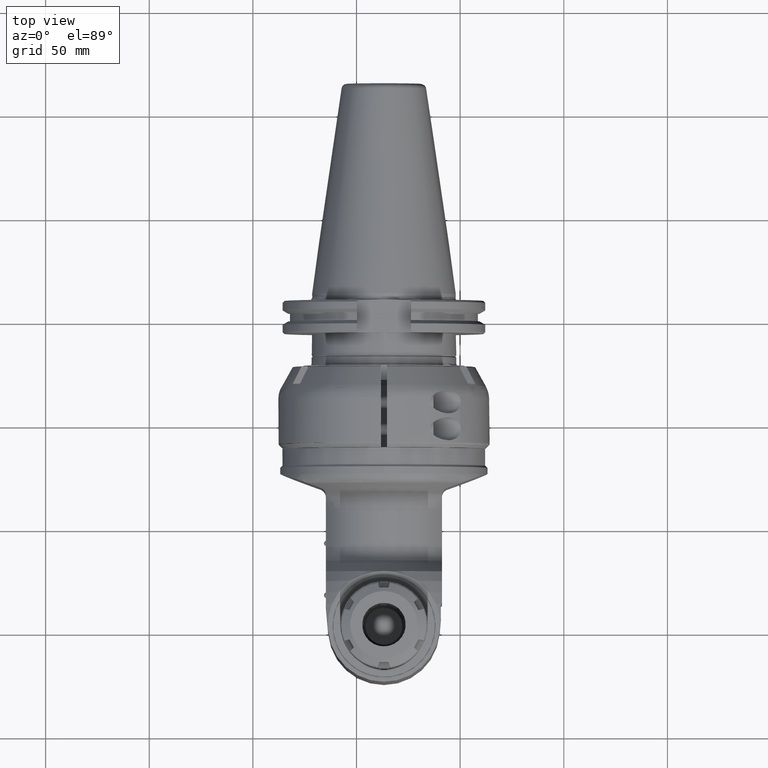
[diagram: clean part render]
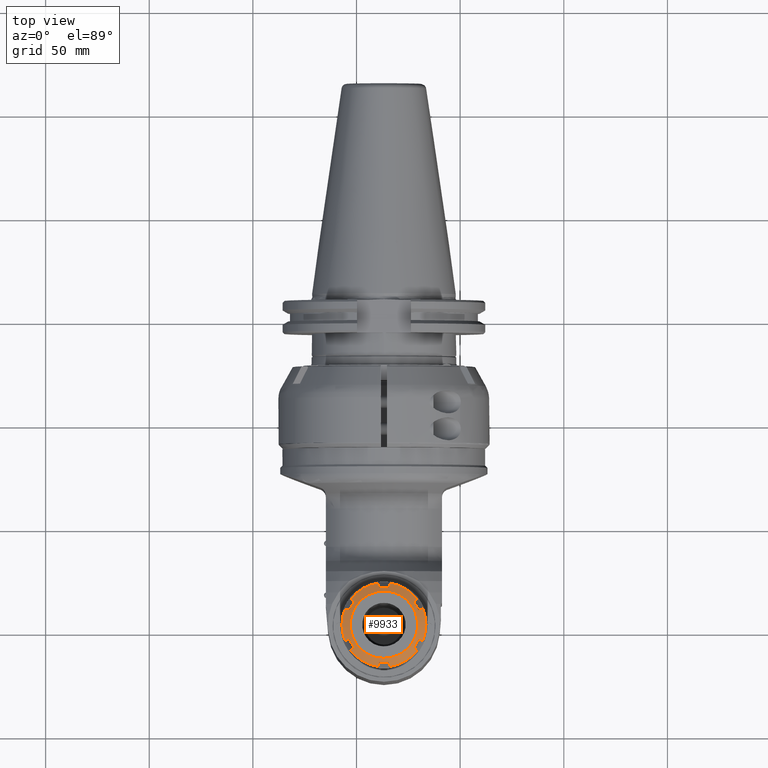
[diagram: same view with one face highlighted and labeled with its STEP entity id]
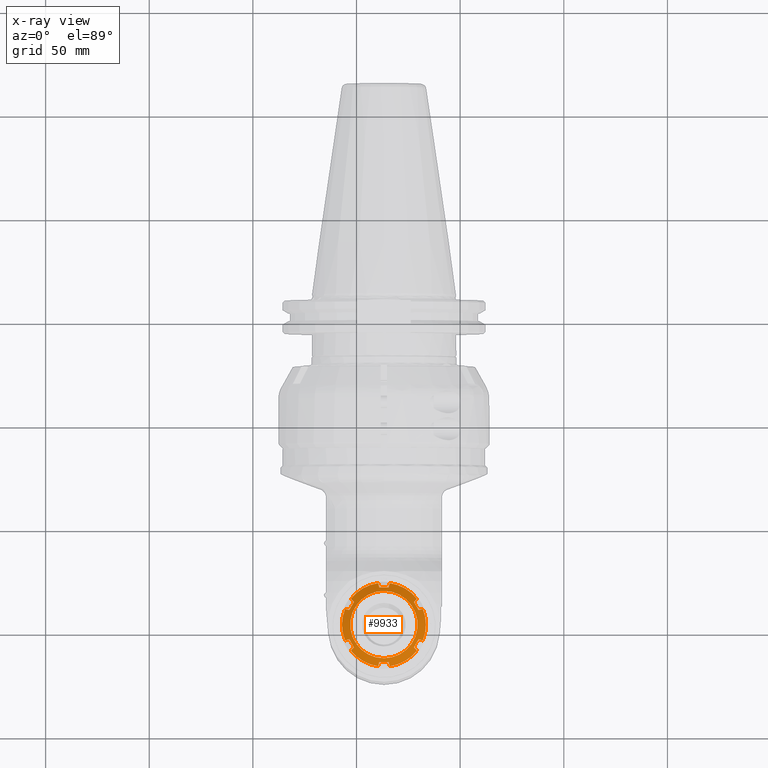
[diagram: x-ray of the same camera — body ghosted, the highlighted face saturated]
A machine part, top view. The second image highlights one B-rep face of the part: STEP entity #9933.
The next image is the same camera in x-ray: the body ghosted, the highlighted face saturated — about 0% of this face is hidden behind the body in this view.
In plain terms, the highlighted conical surface has half-angle 60 deg.
Its self-contained STEP definition (entity closure, byte-faithful):
#118=CONICAL_SURFACE('',#10734,18.25,1.0471975511966);
#382=(
BOUNDED_CURVE()
B_SPLINE_CURVE(2,(#15946,#15947,#15948),.UNSPECIFIED.,.F.,.F.)
B_SPLINE_CURVE_WITH_KNOTS((3,3),(-2.04181772173244,-1.49336521484268),
 .UNSPECIFIED.)
CURVE()
GEOMETRIC_REPRESENTATION_ITEM()
RATIONAL_B_SPLINE_CURVE((1.18733146057967,1.1965715415215,1.18733146058405))
REPRESENTATION_ITEM('')
);
#383=(
BOUNDED_CURVE()
B_SPLINE_CURVE(2,(#15951,#15952,#15953),.UNSPECIFIED.,.F.,.F.)
B_SPLINE_CURVE_WITH_KNOTS((3,3),(-1.02537702849862,-0.679972099676546),
 .UNSPECIFIED.)
CURVE()
GEOMETRIC_REPRESENTATION_ITEM()
RATIONAL_B_SPLINE_CURVE((1.06818275839076,1.06144565769318,1.05151057442012))
REPRESENTATION_ITEM('')
);
#384=(
BOUNDED_CURVE()
B_SPLINE_CURVE(2,(#15975,#15976,#15977),.UNSPECIFIED.,.F.,.F.)
B_SPLINE_CURVE_WITH_KNOTS((3,3),(0.680085396768805,1.02555299439667),
 .UNSPECIFIED.)
CURVE()
GEOMETRIC_REPRESENTATION_ITEM()
RATIONAL_B_SPLINE_CURVE((1.05152845437069,1.0614683149094,1.068210188341))
REPRESENTATION_ITEM('')
);
#385=(
BOUNDED_CURVE()
B_SPLINE_CURVE(2,(#15988,#15989,#15990),.UNSPECIFIED.,.F.,.F.)
B_SPLINE_CURVE_WITH_KNOTS((3,3),(-2.04181760293169,-1.49336533351316),
 .UNSPECIFIED.)
CURVE()
GEOMETRIC_REPRESENTATION_ITEM()
RATIONAL_B_SPLINE_CURVE((1.18733146458299,1.19657153752098,1.18733146458292))
REPRESENTATION_ITEM('')
);
#386=(
BOUNDED_CURVE()
B_SPLINE_CURVE(2,(#15993,#15994,#15995),.UNSPECIFIED.,.F.,.F.)
B_SPLINE_CURVE_WITH_KNOTS((3,3),(2.48068688836934,2.82609226925128),
 .UNSPECIFIED.)
CURVE()
GEOMETRIC_REPRESENTATION_ITEM()
RATIONAL_B_SPLINE_CURVE((1.06818275839783,1.06144564888226,1.05151054841995))
REPRESENTATION_ITEM('')
);
#387=(
BOUNDED_CURVE()
B_SPLINE_CURVE(2,(#16019,#16020,#16021),.UNSPECIFIED.,.F.,.F.)
B_SPLINE_CURVE_WITH_KNOTS((3,3),(-2.82609226927151,-2.48068688839096),
 .UNSPECIFIED.)
CURVE()
GEOMETRIC_REPRESENTATION_ITEM()
RATIONAL_B_SPLINE_CURVE((1.05151054841976,1.06144564888202,1.0681827583976))
REPRESENTATION_ITEM('')
);
#388=(
BOUNDED_CURVE()
B_SPLINE_CURVE(2,(#16030,#16031,#16032),.UNSPECIFIED.,.F.,.F.)
B_SPLINE_CURVE_WITH_KNOTS((3,3),(-2.04181760293166,-1.49336533351213),
 .UNSPECIFIED.)
CURVE()
GEOMETRIC_REPRESENTATION_ITEM()
RATIONAL_B_SPLINE_CURVE((1.18733146458258,1.19657153752061,1.18733146458255))
REPRESENTATION_ITEM('')
);
#389=(
BOUNDED_CURVE()
B_SPLINE_CURVE(2,(#16035,#16036,#16037),.UNSPECIFIED.,.F.,.F.)
B_SPLINE_CURVE_WITH_KNOTS((3,3),(2.48068688837079,2.82609226925146),
 .UNSPECIFIED.)
CURVE()
GEOMETRIC_REPRESENTATION_ITEM()
RATIONAL_B_SPLINE_CURVE((1.06818275839811,1.06144564888253,1.05151054842024))
REPRESENTATION_ITEM('')
);
#390=(
BOUNDED_CURVE()
B_SPLINE_CURVE(2,(#16059,#16060,#16061),.UNSPECIFIED.,.F.,.F.)
B_SPLINE_CURVE_WITH_KNOTS((3,3),(0.680085849541095,1.02555299438939),
 .UNSPECIFIED.)
CURVE()
GEOMETRIC_REPRESENTATION_ITEM()
RATIONAL_B_SPLINE_CURVE((1.05152848042184,1.06146832374113,1.06821018833628))
REPRESENTATION_ITEM('')
);
#391=(
BOUNDED_CURVE()
B_SPLINE_CURVE(2,(#16073,#16074,#16075),.UNSPECIFIED.,.F.,.F.)
B_SPLINE_CURVE_WITH_KNOTS((3,3),(-2.04181772176978,-1.76759146822259),
 .UNSPECIFIED.)
CURVE()
GEOMETRIC_REPRESENTATION_ITEM()
RATIONAL_B_SPLINE_CURVE((1.18733146057841,1.19195150105168,1.19195150105168))
REPRESENTATION_ITEM('')
);
#392=(
BOUNDED_CURVE()
B_SPLINE_CURVE(2,(#16076,#16077,#16078),.UNSPECIFIED.,.F.,.F.)
B_SPLINE_CURVE_WITH_KNOTS((3,3),(-1.76759146822259,-1.49336521468313),
 .UNSPECIFIED.)
CURVE()
GEOMETRIC_REPRESENTATION_ITEM()
RATIONAL_B_SPLINE_CURVE((1.19195150105168,1.19195150105168,1.18733146057867))
REPRESENTATION_ITEM('')
);
#393=(
BOUNDED_CURVE()
B_SPLINE_CURVE(2,(#16081,#16082,#16083),.UNSPECIFIED.,.F.,.F.)
B_SPLINE_CURVE_WITH_KNOTS((3,3),(2.48068688838196,2.82609181659431),
 .UNSPECIFIED.)
CURVE()
GEOMETRIC_REPRESENTATION_ITEM()
RATIONAL_B_SPLINE_CURVE((1.0681827583879,1.06144565770244,1.0515105744529))
REPRESENTATION_ITEM('')
);
#394=(
BOUNDED_CURVE()
B_SPLINE_CURVE(2,(#16105,#16106,#16107),.UNSPECIFIED.,.F.,.F.)
B_SPLINE_CURVE_WITH_KNOTS((3,3),(-2.82761978857846,-2.48215234575009),
 .UNSPECIFIED.)
CURVE()
GEOMETRIC_REPRESENTATION_ITEM()
RATIONAL_B_SPLINE_CURVE((1.0515284098251,1.06146825852152,1.06821012010134))
REPRESENTATION_ITEM('')
);
#395=(
BOUNDED_CURVE()
B_SPLINE_CURVE(2,(#16118,#16119,#16120),.UNSPECIFIED.,.F.,.F.)
B_SPLINE_CURVE_WITH_KNOTS((3,3),(1.49336533351299,2.04181760293252),
 .UNSPECIFIED.)
CURVE()
GEOMETRIC_REPRESENTATION_ITEM()
RATIONAL_B_SPLINE_CURVE((1.18733146458257,1.1965715375206,1.18733146458253))
REPRESENTATION_ITEM('')
);
#396=(
BOUNDED_CURVE()
B_SPLINE_CURVE(2,(#16123,#16124,#16125),.UNSPECIFIED.,.F.,.F.)
B_SPLINE_CURVE_WITH_KNOTS((3,3),(2.4806868883773,2.82609226925563),
 .UNSPECIFIED.)
CURVE()
GEOMETRIC_REPRESENTATION_ITEM()
RATIONAL_B_SPLINE_CURVE((1.06818275839372,1.06144564887853,1.05151054841684))
REPRESENTATION_ITEM('')
);
#397=(
BOUNDED_CURVE()
B_SPLINE_CURVE(2,(#16147,#16148,#16149),.UNSPECIFIED.,.F.,.F.)
B_SPLINE_CURVE_WITH_KNOTS((3,3),(-2.82761978858196,-2.48215234575471),
 .UNSPECIFIED.)
CURVE()
GEOMETRIC_REPRESENTATION_ITEM()
RATIONAL_B_SPLINE_CURVE((1.05152840982208,1.06146825851796,1.06821012009742))
REPRESENTATION_ITEM('')
);
#398=(
BOUNDED_CURVE()
B_SPLINE_CURVE(2,(#16160,#16161,#16162),.UNSPECIFIED.,.F.,.F.)
B_SPLINE_CURVE_WITH_KNOTS((3,3),(-2.04181760293326,-1.49336533351451),
 .UNSPECIFIED.)
CURVE()
GEOMETRIC_REPRESENTATION_ITEM()
RATIONAL_B_SPLINE_CURVE((1.18733146458273,1.19657153752079,1.18733146458279))
REPRESENTATION_ITEM('')
);
#399=(
BOUNDED_CURVE()
B_SPLINE_CURVE(2,(#16165,#16166,#16167),.UNSPECIFIED.,.F.,.F.)
B_SPLINE_CURVE_WITH_KNOTS((3,3),(2.48068688836529,2.82609226925125),
 .UNSPECIFIED.)
CURVE()
GEOMETRIC_REPRESENTATION_ITEM()
RATIONAL_B_SPLINE_CURVE((1.06818275839982,1.06144564888404,1.05151054842136))
REPRESENTATION_ITEM('')
);
#400=(
BOUNDED_CURVE()
B_SPLINE_CURVE(2,(#16188,#16189,#16190),.UNSPECIFIED.,.F.,.F.)
B_SPLINE_CURVE_WITH_KNOTS((3,3),(0.67997210017133,1.02537702849877),
 .UNSPECIFIED.)
CURVE()
GEOMETRIC_REPRESENTATION_ITEM()
RATIONAL_B_SPLINE_CURVE((1.05151057444858,1.06144565770284,1.06818275839077))
REPRESENTATION_ITEM('')
);
#842=CIRCLE('',#10692,20.25);
#843=CIRCLE('',#10700,20.25);
#844=CIRCLE('',#10708,20.25);
#845=CIRCLE('',#10716,20.25);
#846=CIRCLE('',#10724,20.25);
#847=CIRCLE('',#10732,20.25);
#848=CIRCLE('',#10735,16.25);
#1430=FACE_OUTER_BOUND('',#2056,.T.);
#2056=EDGE_LOOP('',(#7133,#7134,#7135,#7136,#7137,#7138,#7139,#7140,#7141,
#7142,#7143,#7144,#7145,#7146,#7147,#7148,#7149,#7150,#7151,#7152,#7153,
#7154,#7155,#7156,#7157,#7158,#7159,#7160));
#2724=LINE('',#16193,#3394);
#3394=VECTOR('',#12317,18.25);
#4163=VERTEX_POINT('',#15942);
#4164=VERTEX_POINT('',#15944);
#4165=VERTEX_POINT('',#15950);
#4166=VERTEX_POINT('',#15963);
#4167=VERTEX_POINT('',#15974);
#4170=VERTEX_POINT('',#15986);
#4171=VERTEX_POINT('',#15992);
#4172=VERTEX_POINT('',#16005);
#4174=VERTEX_POINT('',#16018);
#4176=VERTEX_POINT('',#16028);
#4177=VERTEX_POINT('',#16034);
#4178=VERTEX_POINT('',#16047);
#4179=VERTEX_POINT('',#16058);
#4182=VERTEX_POINT('',#16070);
#4183=VERTEX_POINT('',#16072);
#4184=VERTEX_POINT('',#16080);
#4185=VERTEX_POINT('',#16093);
#4186=VERTEX_POINT('',#16104);
#4189=VERTEX_POINT('',#16116);
#4190=VERTEX_POINT('',#16122);
#4191=VERTEX_POINT('',#16135);
#4192=VERTEX_POINT('',#16146);
#4195=VERTEX_POINT('',#16158);
#4196=VERTEX_POINT('',#16164);
#4197=VERTEX_POINT('',#16177);
#4198=VERTEX_POINT('',#16192);
#5246=EDGE_CURVE('',#4164,#4163,#382,.T.);
#5247=EDGE_CURVE('',#4165,#4163,#383,.T.);
#5250=EDGE_CURVE('',#4165,#4166,#842,.T.);
#5251=EDGE_CURVE('',#4167,#4166,#384,.T.);
#5257=EDGE_CURVE('',#4167,#4170,#385,.T.);
#5258=EDGE_CURVE('',#4171,#4170,#386,.T.);
#5261=EDGE_CURVE('',#4171,#4172,#843,.T.);
#5263=EDGE_CURVE('',#4174,#4172,#387,.T.);
#5268=EDGE_CURVE('',#4174,#4176,#388,.T.);
#5269=EDGE_CURVE('',#4177,#4176,#389,.T.);
#5272=EDGE_CURVE('',#4177,#4178,#844,.T.);
#5273=EDGE_CURVE('',#4179,#4178,#390,.T.);
#5279=EDGE_CURVE('',#4179,#4183,#391,.T.);
#5280=EDGE_CURVE('',#4183,#4182,#392,.T.);
#5281=EDGE_CURVE('',#4184,#4182,#393,.T.);
#5284=EDGE_CURVE('',#4184,#4185,#845,.T.);
#5285=EDGE_CURVE('',#4186,#4185,#394,.T.);
#5291=EDGE_CURVE('',#4189,#4186,#395,.T.);
#5292=EDGE_CURVE('',#4190,#4189,#396,.T.);
#5294=EDGE_CURVE('',#4190,#4191,#846,.T.);
#5296=EDGE_CURVE('',#4192,#4191,#397,.T.);
#5302=EDGE_CURVE('',#4192,#4195,#398,.T.);
#5303=EDGE_CURVE('',#4196,#4195,#399,.T.);
#5306=EDGE_CURVE('',#4196,#4197,#847,.T.);
#5307=EDGE_CURVE('',#4164,#4197,#400,.T.);
#5308=EDGE_CURVE('',#4183,#4198,#2724,.T.);
#5309=EDGE_CURVE('',#4198,#4198,#848,.T.);
#7133=ORIENTED_EDGE('',*,*,#5246,.F.);
#7134=ORIENTED_EDGE('',*,*,#5307,.T.);
#7135=ORIENTED_EDGE('',*,*,#5306,.F.);
#7136=ORIENTED_EDGE('',*,*,#5303,.T.);
#7137=ORIENTED_EDGE('',*,*,#5302,.F.);
#7138=ORIENTED_EDGE('',*,*,#5296,.T.);
#7139=ORIENTED_EDGE('',*,*,#5294,.F.);
#7140=ORIENTED_EDGE('',*,*,#5292,.T.);
#7141=ORIENTED_EDGE('',*,*,#5291,.T.);
#7142=ORIENTED_EDGE('',*,*,#5285,.T.);
#7143=ORIENTED_EDGE('',*,*,#5284,.F.);
#7144=ORIENTED_EDGE('',*,*,#5281,.T.);
#7145=ORIENTED_EDGE('',*,*,#5280,.F.);
#7146=ORIENTED_EDGE('',*,*,#5308,.T.);
#7147=ORIENTED_EDGE('',*,*,#5309,.F.);
#7148=ORIENTED_EDGE('',*,*,#5308,.F.);
#7149=ORIENTED_EDGE('',*,*,#5279,.F.);
#7150=ORIENTED_EDGE('',*,*,#5273,.T.);
#7151=ORIENTED_EDGE('',*,*,#5272,.F.);
#7152=ORIENTED_EDGE('',*,*,#5269,.T.);
#7153=ORIENTED_EDGE('',*,*,#5268,.F.);
#7154=ORIENTED_EDGE('',*,*,#5263,.T.);
#7155=ORIENTED_EDGE('',*,*,#5261,.F.);
#7156=ORIENTED_EDGE('',*,*,#5258,.T.);
#7157=ORIENTED_EDGE('',*,*,#5257,.F.);
#7158=ORIENTED_EDGE('',*,*,#5251,.T.);
#7159=ORIENTED_EDGE('',*,*,#5250,.F.);
#7160=ORIENTED_EDGE('',*,*,#5247,.T.);
#9933=ADVANCED_FACE('',(#1430),#118,.T.);
#10692=AXIS2_PLACEMENT_3D('',#15972,#12216,#12217);
#10700=AXIS2_PLACEMENT_3D('',#16014,#12235,#12236);
#10708=AXIS2_PLACEMENT_3D('',#16056,#12254,#12255);
#10716=AXIS2_PLACEMENT_3D('',#16102,#12273,#12274);
#10724=AXIS2_PLACEMENT_3D('',#16136,#12292,#12293);
#10732=AXIS2_PLACEMENT_3D('',#16186,#12311,#12312);
#10734=AXIS2_PLACEMENT_3D('',#16191,#12315,#12316);
#10735=AXIS2_PLACEMENT_3D('',#16194,#12318,#12319);
#12216=DIRECTION('center_axis',(0.,1.,0.));
#12217=DIRECTION('ref_axis',(0.990389258049091,0.,-0.138308053058999));
#12235=DIRECTION('center_axis',(0.,1.,0.));
#12236=DIRECTION('ref_axis',(0.375416341527389,0.,-0.926856283635274));
#12254=DIRECTION('center_axis',(0.,1.,0.));
#12255=DIRECTION('ref_axis',(-0.614972916521619,0.,-0.788548230576224));
#12273=DIRECTION('center_axis',(0.,1.,0.));
#12274=DIRECTION('ref_axis',(-0.990389258049077,0.,0.138308053059097));
#12292=DIRECTION('center_axis',(0.,1.,0.));
#12293=DIRECTION('ref_axis',(-0.375416341527389,0.,0.926856283635274));
#12311=DIRECTION('center_axis',(0.,1.,0.));
#12312=DIRECTION('ref_axis',(0.614972916521792,0.,0.788548230576089));
#12315=DIRECTION('center_axis',(0.,1.,0.));
#12316=DIRECTION('ref_axis',(1.,0.,0.));
#12317=DIRECTION('',(0.866025403784439,-0.5,-1.06057523872491E-16));
#12318=DIRECTION('center_axis',(0.,-1.,0.));
#12319=DIRECTION('ref_axis',(1.,0.,0.));
#15942=CARTESIAN_POINT('',(108.000000058522,-77.4087621730875,-2.25000003803051));
#15944=CARTESIAN_POINT('',(108.000000058586,-77.4087621729825,2.25000003807213));
#15946=CARTESIAN_POINT('Ctrl Pts',(108.,-77.4087621986591,2.25000098287158));
#15947=CARTESIAN_POINT('Ctrl Pts',(108.,-77.569888184967,5.28951327183336E-10));
#15948=CARTESIAN_POINT('Ctrl Pts',(108.,-77.408762198736,-2.25000098179714));
#15950=CARTESIAN_POINT('',(110.0553824755,-76.19059935078,-2.800738074446));
#15951=CARTESIAN_POINT('Ctrl Pts',(110.055382475499,-76.190599350778,-2.80073807444686));
#15952=CARTESIAN_POINT('Ctrl Pts',(108.971210721645,-76.8337276879404,-2.51023512854513));
#15953=CARTESIAN_POINT('Ctrl Pts',(108.000002567035,-77.4087607491537,-2.25000068783484));
#15963=CARTESIAN_POINT('',(102.4532015596,-76.19059935078,-15.96810166916));
#15972=CARTESIAN_POINT('Origin',(90.,-76.19059935078,0.));
#15974=CARTESIAN_POINT('',(100.948557159178,-77.4087622681495,-14.4634572683329));
#15975=CARTESIAN_POINT('Ctrl Pts',(100.94855715911,-77.408762268556,-14.4634572687299));
#15976=CARTESIAN_POINT('Ctrl Pts',(101.65953170628,-76.8337285349925,-15.1744318159002));
#15977=CARTESIAN_POINT('Ctrl Pts',(102.453201559567,-76.1905993507714,-15.9681016691865));
#15986=CARTESIAN_POINT('',(97.051442841324,-77.4087622681485,-16.7134572688087));
#15988=CARTESIAN_POINT('Ctrl Pts',(100.94855715897,-77.4087622690103,-14.4634572678488));
#15989=CARTESIAN_POINT('Ctrl Pts',(98.9999999999895,-77.569888115745,-15.5884572681175));
#15990=CARTESIAN_POINT('Ctrl Pts',(97.0514428410089,-77.4087622690091,-16.7134572683863));
#15992=CARTESIAN_POINT('',(97.60218091593,-76.19059935078,-18.76883974361));
#15993=CARTESIAN_POINT('Ctrl Pts',(97.6021809159253,-76.1905993507826,-18.7688397436128));
#15994=CARTESIAN_POINT('Ctrl Pts',(97.3116775874077,-76.833728534997,-17.6846665618172));
#15995=CARTESIAN_POINT('Ctrl Pts',(97.0514428417019,-77.4087622685548,-16.7134572689481));
#16005=CARTESIAN_POINT('',(82.39781908407,-76.19059935078,-18.76883974361));
#16014=CARTESIAN_POINT('Origin',(90.,-76.19059935078,0.));
#16018=CARTESIAN_POINT('',(82.9485571586647,-77.4087622681433,-16.7134572688136));
#16019=CARTESIAN_POINT('Ctrl Pts',(82.9485571582868,-77.4087622685497,-16.713457268953));
#16020=CARTESIAN_POINT('Ctrl Pts',(82.6883224125816,-76.8337285349934,-17.6846665618196));
#16021=CARTESIAN_POINT('Ctrl Pts',(82.3978190840654,-76.1905993507821,-18.76883974361));
#16028=CARTESIAN_POINT('',(79.051442840802,-77.4087622681428,-14.4634572683328));
#16030=CARTESIAN_POINT('Ctrl Pts',(82.9485571589797,-77.408762269004,-16.7134572683912));
#16031=CARTESIAN_POINT('Ctrl Pts',(80.9999999999951,-77.5698881157396,-15.58845726812));
#16032=CARTESIAN_POINT('Ctrl Pts',(79.0514428410103,-77.4087622690034,-14.4634572678487));
#16034=CARTESIAN_POINT('',(77.54679844044,-76.19059935078,-15.96810166917));
#16035=CARTESIAN_POINT('Ctrl Pts',(77.5467984404345,-76.1905993507813,-15.9681016691655));
#16036=CARTESIAN_POINT('Ctrl Pts',(78.3404682937093,-76.8337285349932,-15.1744318158906));
#16037=CARTESIAN_POINT('Ctrl Pts',(79.0514428408703,-77.4087622685491,-14.4634572687297));
#16047=CARTESIAN_POINT('',(69.94461752451,-76.19059935078,-2.800738074446));
#16056=CARTESIAN_POINT('Origin',(90.,-76.19059935078,0.));
#16058=CARTESIAN_POINT('',(71.9999974293494,-77.4087607470128,-2.25000068880376));
#16059=CARTESIAN_POINT('Ctrl Pts',(71.9999974293494,-77.4087607470128,-2.25000068880376));
#16060=CARTESIAN_POINT('Ctrl Pts',(71.0287892763468,-76.8337276867491,-2.5102351290833));
#16061=CARTESIAN_POINT('Ctrl Pts',(69.9446175245084,-76.1905993507822,-2.80073807444499));
#16070=CARTESIAN_POINT('',(71.9999999413999,-77.4087621729587,2.25000003808157));
#16072=CARTESIAN_POINT('',(72.,-77.4896374564574,1.56789864530167E-15));
#16073=CARTESIAN_POINT('Ctrl Pts',(72.,-77.4087621986369,-2.25000098318035));
#16074=CARTESIAN_POINT('Ctrl Pts',(72.,-77.4896374564574,-1.12063995527724));
#16075=CARTESIAN_POINT('Ctrl Pts',(72.,-77.4896374564574,9.31433052138102E-16));
#16076=CARTESIAN_POINT('Ctrl Pts',(72.,-77.4896374564574,9.31433052138102E-16));
#16077=CARTESIAN_POINT('Ctrl Pts',(72.,-77.4896374564574,1.12063995524565));
#16078=CARTESIAN_POINT('Ctrl Pts',(72.,-77.4087621986415,2.25000098311643));
#16080=CARTESIAN_POINT('',(69.94461752451,-76.19059935078,2.800738074446));
#16081=CARTESIAN_POINT('Ctrl Pts',(69.9446175245085,-76.1905993507821,2.80073807444497));
#16082=CARTESIAN_POINT('Ctrl Pts',(71.0287892764394,-76.8337276868039,2.51023512905848));
#16083=CARTESIAN_POINT('Ctrl Pts',(71.9999974295175,-77.4087607471123,2.25000068875871));
#16093=CARTESIAN_POINT('',(77.54679844043,-76.19059935078,15.96810166916));
#16102=CARTESIAN_POINT('Origin',(90.,-76.19059935078,0.));
#16104=CARTESIAN_POINT('',(79.0514428408019,-77.4087622681427,14.4634572683329));
#16105=CARTESIAN_POINT('Ctrl Pts',(79.0514428408702,-77.4087622685491,14.4634572687298));
#16106=CARTESIAN_POINT('Ctrl Pts',(78.3404682937093,-76.8337285349932,15.1744318158907));
#16107=CARTESIAN_POINT('Ctrl Pts',(77.5467984404345,-76.1905993507813,15.9681016691655));
#16116=CARTESIAN_POINT('',(82.9485571586647,-77.4087622681432,16.7134572688137));
#16118=CARTESIAN_POINT('Ctrl Pts',(82.9485571589797,-77.4087622690039,16.7134572683913));
#16119=CARTESIAN_POINT('Ctrl Pts',(80.9999999999951,-77.5698881157396,15.5884572681201));
#16120=CARTESIAN_POINT('Ctrl Pts',(79.0514428410103,-77.4087622690033,14.4634572678488));
#16122=CARTESIAN_POINT('',(82.39781908407,-76.19059935078,18.76883974361));
#16123=CARTESIAN_POINT('Ctrl Pts',(82.3978190840654,-76.190599350782,18.76883974361));
#16124=CARTESIAN_POINT('Ctrl Pts',(82.6883224125815,-76.833728534993,17.68466656182));
#16125=CARTESIAN_POINT('Ctrl Pts',(82.9485571582868,-77.4087622685496,16.7134572689531));
#16135=CARTESIAN_POINT('',(97.60218091593,-76.19059935078,18.76883974361));
#16136=CARTESIAN_POINT('Origin',(90.,-76.19059935078,0.));
#16146=CARTESIAN_POINT('',(97.0514428413253,-77.4087622681455,16.7134572688136));
#16147=CARTESIAN_POINT('Ctrl Pts',(97.0514428417032,-77.4087622685519,16.713457268953));
#16148=CARTESIAN_POINT('Ctrl Pts',(97.3116775874086,-76.833728534995,17.6846665618205));
#16149=CARTESIAN_POINT('Ctrl Pts',(97.6021809159253,-76.1905993507825,18.7688397436128));
#16158=CARTESIAN_POINT('',(100.948557159182,-77.4087622681468,14.4634572683364));
#16160=CARTESIAN_POINT('Ctrl Pts',(97.0514428410102,-77.4087622690062,16.7134572683912));
#16161=CARTESIAN_POINT('Ctrl Pts',(98.9999999999919,-77.5698881157422,15.5884572681217));
#16162=CARTESIAN_POINT('Ctrl Pts',(100.948557158973,-77.4087622690074,14.4634572678523));
#16164=CARTESIAN_POINT('',(102.4532015596,-76.19059935078,15.96810166917));
#16165=CARTESIAN_POINT('Ctrl Pts',(102.45320155957,-76.1905993507683,15.9681016691903));
#16166=CARTESIAN_POINT('Ctrl Pts',(101.659531706284,-76.8337285349897,15.1744318159036));
#16167=CARTESIAN_POINT('Ctrl Pts',(100.948557159113,-77.4087622685531,14.4634572687334));
#16177=CARTESIAN_POINT('',(110.0553824755,-76.19059935078,2.800738074451));
#16186=CARTESIAN_POINT('Origin',(90.,-76.19059935078,0.));
#16188=CARTESIAN_POINT('Ctrl Pts',(108.000002569843,-77.4087607474907,2.25000068858744));
#16189=CARTESIAN_POINT('Ctrl Pts',(108.971210723208,-76.833727687013,2.51023512896403));
#16190=CARTESIAN_POINT('Ctrl Pts',(110.055382475499,-76.1905993507774,2.80073807444711));
#16191=CARTESIAN_POINT('Origin',(90.,-77.34529988916,0.));
#16192=CARTESIAN_POINT('',(73.749999999996,-78.5000004275369,1.99005104861494E-15));
#16193=CARTESIAN_POINT('',(71.75,-77.34529988916,2.23498040844392E-15));
#16194=CARTESIAN_POINT('Origin',(90.,-78.50000042753,0.));